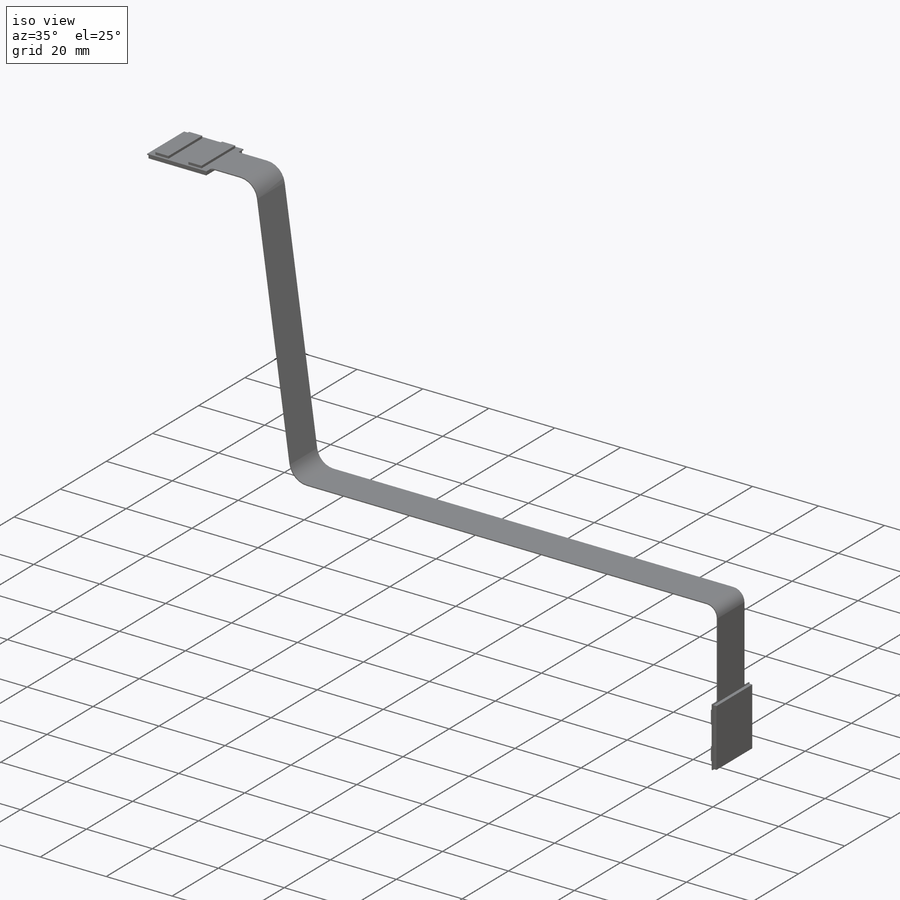
[diagram: iso view]
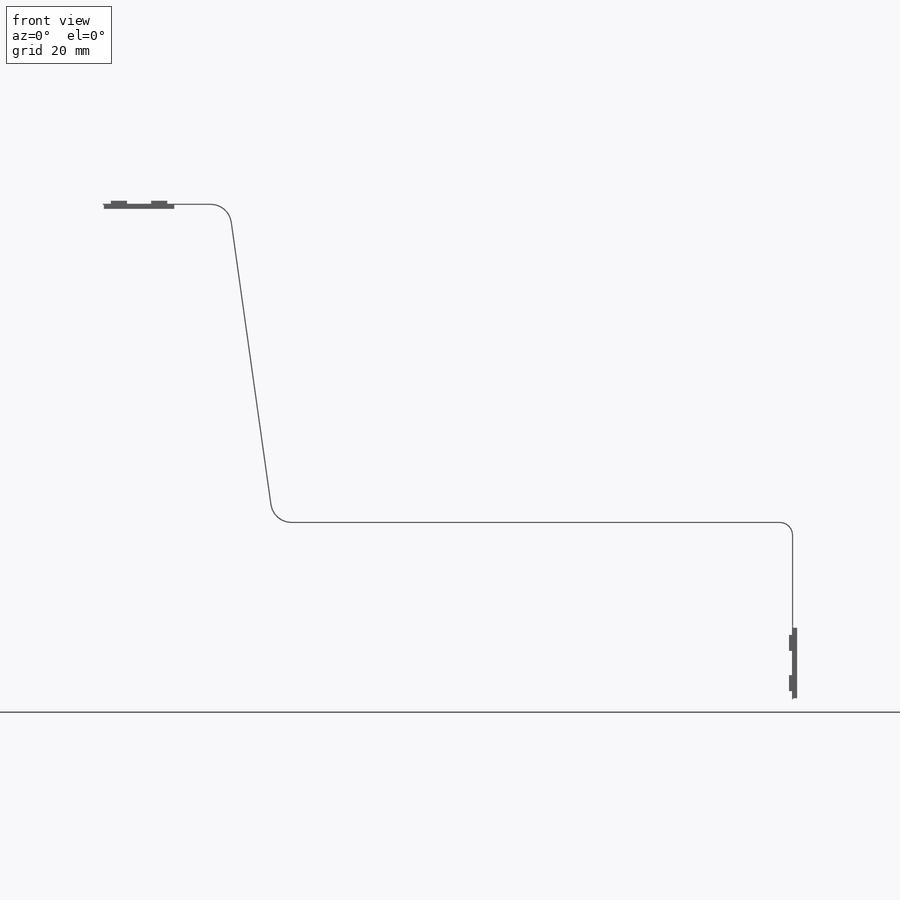
[diagram: front view]
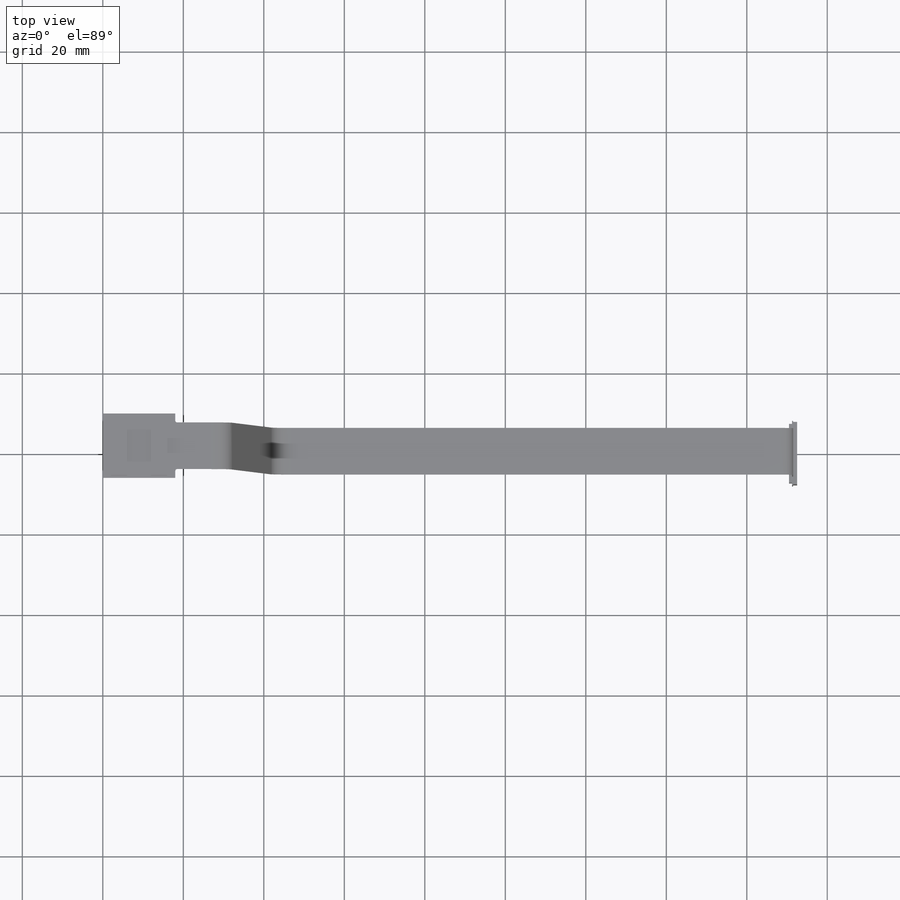
[diagram: top view]
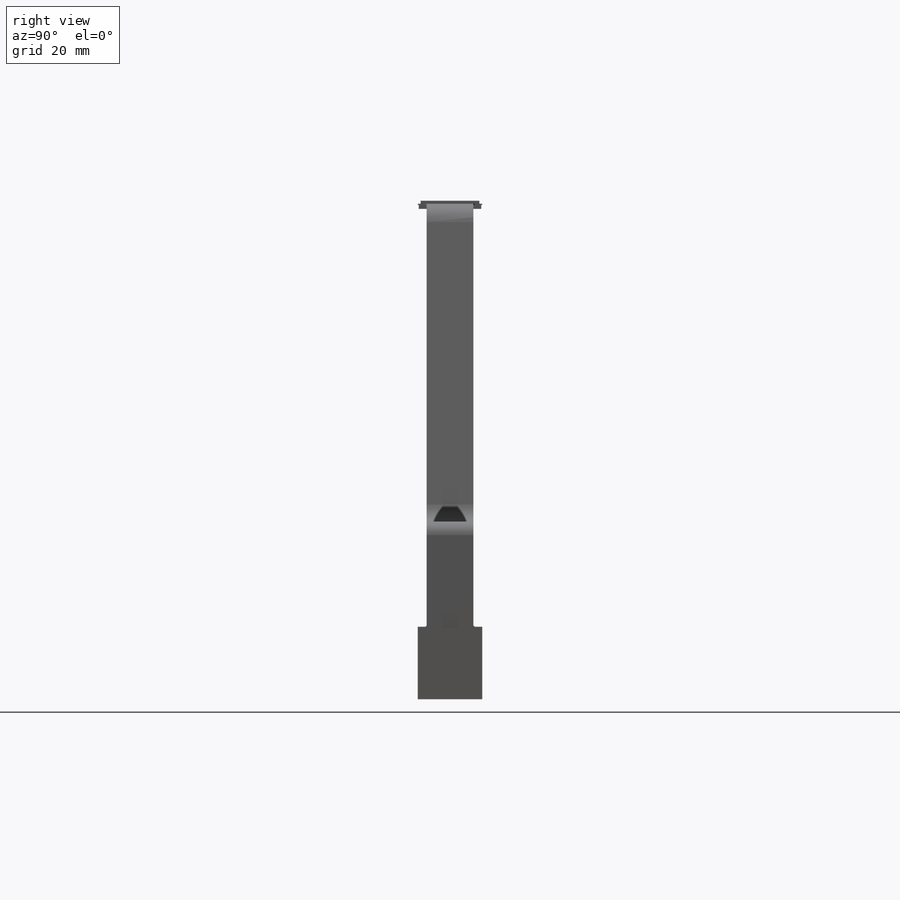
[diagram: right view]
SOLIDWORKS PART (.sldprt)
format: sldprt  version: not decoded by parser v0  size: 2,030,080 bytes
history: native  units: mm
features: sketch x16, extrude x4, plane x3, cut_extrude x3, material x1, sheet_metal_op x1 + 13 further entries (+12 scaffold rows collapsed; 1 parser-record rows omitted)
feature tree (54):
  scaffold x12  (default folders/planes/origin — collapsed)
  material  "Material <not specified>"
  plane  "Plane1"
  plane  "Plane2"
  plane  "Plane3"
  sketch  "Sketch2"  dims[c1.D1=16.0mm c2.D1=~213.950428mm c2.D2=0.294mm c2.D6=1.0mm c2.D7=5.0mm]
  sketch  "Sketch3"  dims[c1.D1=19.6mm c1.D2=4.0mm c1.D3=2.0mm c1.D4=6.0mm c2.D1=1.0mm c2.D3=2.0mm c3.D1=14.6mm]
  extrude  "Extrude1"  Depth=0.725mm
  sketch  "Sketch12"  dims[c1.D5=0.3mm c1.D6=0.05mm c1.D1=2.36mm c1.D2=0.15mm c1.D3=0.15mm c1.D4=~0.207596mm c2.D4=~40.06758deg c2.D7=0.1mm c2.D2=0.575mm c2.D8=~0.083679mm]
  cut_extrude  "Extrude5"  [1 undecoded]
  sketch  "Sketch4"
  extrude  "Extrude2"  Depth=0.725mm
  sketch  "Sketch13"  dims[c1.D5=0.3mm c1.D6=0.05mm c1.D1=2.36mm c1.D2=0.15mm c1.D3=0.15mm c1.D4=~0.207596mm c2.D4=~40.06758deg c2.D7=0.1mm c2.D2=0.575mm c2.D8=~0.083679mm]
  cut_extrude  "Extrude6"  [1 undecoded]
  sketch  "Sketch10"  dims[c1.D2=17.5mm c1.D1=0.25mm c1.D3=0.25mm c1.D4=0.25mm c2.D1=0.25mm]
  extrude  "Extrude3"  Depth=1mm
  sketch  "Sketch11"  dims[D1=17.5mm D2=0.25mm D3=0.25mm D4=0.25mm]
  extrude  "Extrude4"  Depth=1mm
  sketch  "Sketch15"  dims[D3=0.5mm D1=18.0mm D2=18.0mm D4=11.6mm]
  cut_extrude  "Extrude8"  [1 undecoded]
  sheet_metal_op  "Sheet-Metal1"  Thickness=0.294mm
  sketch  "Sharp-Sketch1"  dims[D1=3.0mm D2=500.0mm D3=0.0mm]
  sketch  "Flat-Sketch1"  dims[c1.D1=24.0mm c1.D2=30.0mm c1.D3=50.0mm c2.D1=22.0mm c2.D2=9.5mm c2.D3=~139.201821mm c3.D1=3.0mm c3.D2=500.0mm c3.D3=0.0mm c3.D4=90.0deg c3.D5=1.0 c3.D8=0.147mm c3.D9=0.147mm c3.FlatBend2=0.0 c4.D1=5.0mm c4.D2=500.0mm c4.D3=0.0mm c4.D4=30.0deg c4.D5=3.0 c4.D8=0.088mm c4.D9=0.088mm c4.FlatBend3=0.0 c5.D1=5.0mm c5.D2=500.0mm c5.D3=0.0mm c5.D4=30.0deg c5.D5=2.0 c5.D8=0.088mm c5.D9=0.088mm c6.D1=3.0mm c6.D2=500.0mm c6.D3=0.0mm]
  sketch  "Sketch5"  dims[c1.D1=~30.490198mm c1.JogBend1=0.0 c2.D1=5.0mm c2.D4=82.0deg c2.D5=4.0 c2.D8=0.088mm c2.D9=0.088mm c2.JogBend2=0.0 c3.D1=5.0mm c3.D2=500.0mm c3.D3=0.0mm c3.D4=82.0deg c3.D5=5.0 c3.D8=0.25mm c3.D9=0.25mm c4.D1=5.0mm c4.D2=500.0mm c4.D3=0.0mm c5.D2=~79.058324mm c5.D3=82.0deg]
  sketch  "Sketch6"  dims[c1.D1=~21.513008mm c1.JogBend3=0.0 c2.D1=3.0mm c2.D4=20.0deg c2.D5=6.0 c2.D8=0.088mm c2.D9=0.088mm c2.JogBend4=0.0 c3.D1=3.0mm c3.D4=20.0deg c3.D5=7.0 c3.D8=0.088mm c3.D9=0.088mm c4.D1=3.0mm c4.D2=500.0mm c4.D3=0.0mm c5.D2=~0.86125mm c5.D3=20.0deg]
  sketch  "Sketch7"  dims[c1.D1=2.0mm c1.JogBend5=0.0 c2.D1=2.0mm c2.D4=45.0deg c2.D5=8.0 c2.D8=0.088mm c2.D9=0.088mm c2.JogBend6=0.0 c3.D1=2.0mm c3.D4=45.0deg c3.D5=9.0 c3.D8=0.088mm c3.D9=0.088mm c4.D1=2.0mm c4.D2=500.0mm c4.D3=0.0mm c5.D2=1.0mm c5.D3=10.0deg]
  sketch  "Sketch8"  dims[c1.D1=30.0mm c1.JogBend7=0.0 c2.D1=2.5mm c2.D4=90.0deg c2.D5=10.0 c2.D8=0.088mm c2.D9=0.088mm c2.JogBend8=0.0 c3.D1=2.5mm c3.D4=90.0deg c3.D5=11.0 c3.D8=0.088mm c3.D9=0.088mm c4.D1=2.5mm c4.D2=500.0mm c4.D3=0.0mm c5.D2=1.0mm c5.D3=10.0deg]
  sketch  "Sketch9"  dims[c1.D1=30.0mm c1.JogBend9=0.0 c2.D1=6.35mm c2.D4=20.0deg c2.D5=12.0 c2.D8=0.088mm c2.D9=0.088mm c2.JogBend10=0.0 c3.D1=6.35mm c3.D4=20.0deg c3.D5=13.0 c3.D8=0.088mm c3.D9=0.088mm c4.D1=6.35mm c4.D2=500.0mm c4.D3=0.0mm c5.D2=~8.065119mm c5.D3=10.0deg]
  "Flat-Pattern1"
  sketch  "Bend-Lines1"
  "Flatten-<FlatBend2>1"
  "Flatten-<FlatBend3>1"
  parser-record x1  (decoder bookkeeping rows leaked as tree rows — omitted from the tree; the rows remain in map.json)
  "Flatten-<JogBend1>1"
  "Flatten-<JogBend2>1"
  "Flatten-<JogBend3>1"
  "Flatten-<JogBend4>1"
  "Flatten-<JogBend5>1"
  "Flatten-<JogBend6>1"
  "Flatten-<JogBend7>1"
  "Flatten-<JogBend8>1"
  "Flatten-<JogBend9>1"
  "Flatten-<JogBend10>1"
decode coverage: 19 of 24 modeling features carry decoded parameters; 13 rows unclassified (native names shown)
note: ~ marks probable driven/reference dimensions
note: 3 parameter values undecoded
summary: no parameter record found for 3 features
note: suppression state not decoded; provenance and decode notes live in map.json
